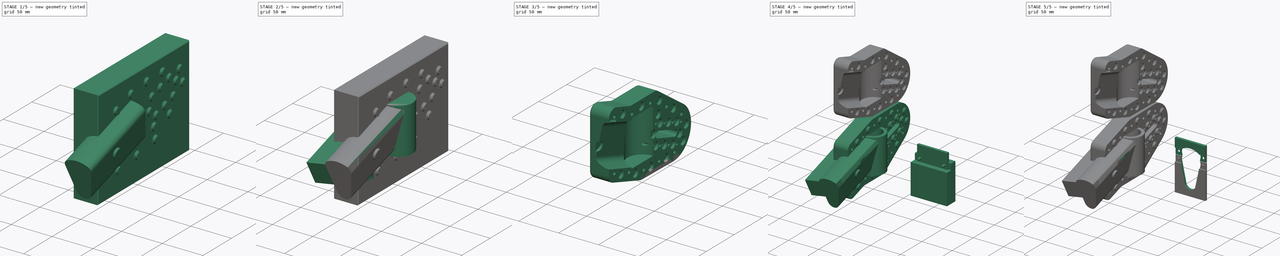
[diagram: build sequence overview — one tinted view per stage of 5, left to right]
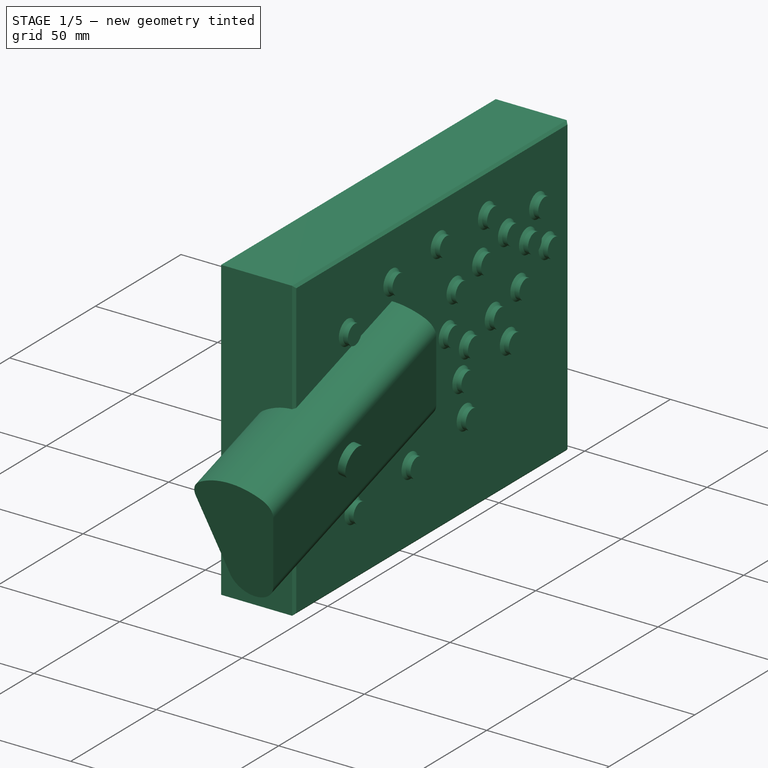
[diagram: stage 1 of 5 — iso view after this stage's code; geometry added in this stage tinted green]
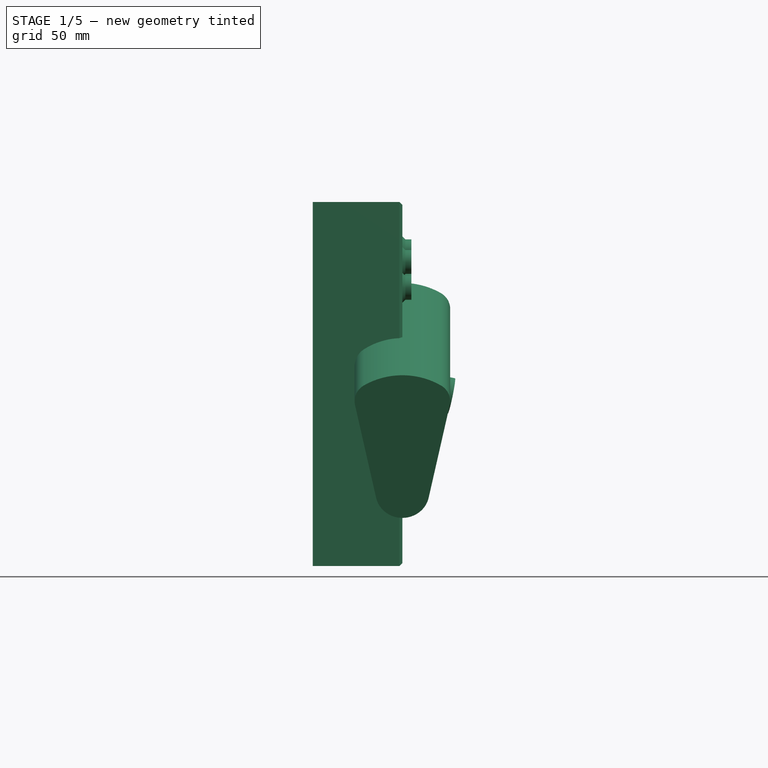
[diagram: stage 1 of 5 — front view after this stage's code; geometry added in this stage tinted green]
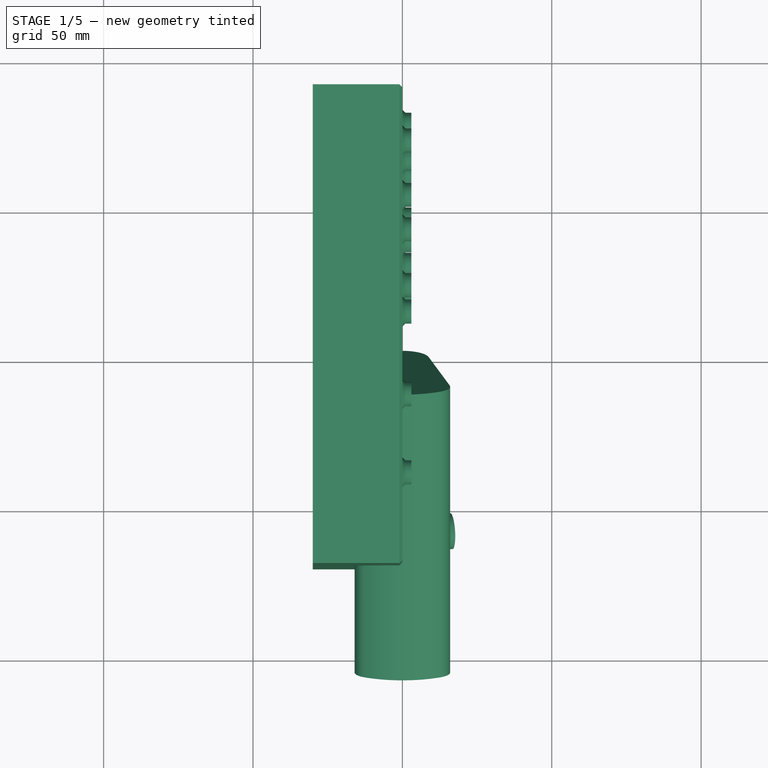
[diagram: stage 1 of 5 — top view after this stage's code; geometry added in this stage tinted green]
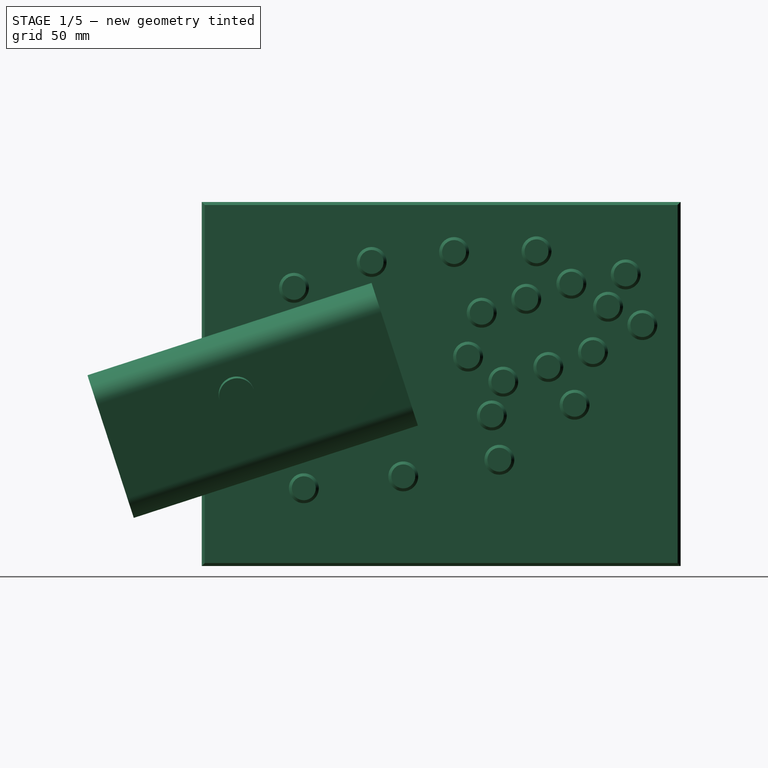
[diagram: stage 1 of 5 — right view after this stage's code; geometry added in this stage tinted green]
FCSTD DOCUMENT  (FreeCAD 0.20R28647 (Git))
Label: ello-front-wheel-mount
License: All rights reserved
LicenseURL: http://en.wikipedia.org/wiki/All_rights_reserved
objects: Sketcher::SketchObject×12, PartDesign::Pad×10, PartDesign::Body×6, Part::FeaturePython×6, Part::Cut×3, Part::Cylinder×2, PartDesign::FeatureBase×2, App::DocumentObjectGroup×2, PartDesign::Pocket×2, Part::Box×1, PartDesign::Mirrored×1, PartDesign::Fillet×1, Part::MultiFuse×1, PartDesign::PolarPattern×1, PartDesign::Chamfer×1
note: 63 computed .brp shape members not serialized (recipe doc carries the construction recipe); baked Part::Feature solids carry a one-line shape summary decoded from their .brp

FEATURE [Sketcher::SketchObject] Sketch  label="beam-profile"
  FullyConstrained = true
  MapMode = 5
  Placement = pos=(0,0,0) rot=(1,0,0;1.5708rad)
  Support = -> [XZ_Plane]
  sketch-geometry (12):
    g0: LineSegment StartX=-15.8529 StartY=39.6995 StartZ=0 EndX=-8.79633 EndY=7.09615 EndZ=0
    g1: LineSegment StartX=8.79633 StartY=7.09615 StartZ=0 EndX=15.8529 EndY=39.6995 EndZ=0
    g2: GeomPoint X=0 Y=50.2 Z=0
    g3: GeomPoint X=0 Y=0 Z=0
    g4: ArcOfCircle CenterX=-9.5 CenterY=41.0745 CenterZ=0 NormalX=0 NormalY=0 NormalZ=1 AngleXU=0 Radius=6.5 StartAngle=2.11007 EndAngle=3.35474
    g5: ArcOfCircle CenterX=9.5 CenterY=41.0745 CenterZ=0 NormalX=0 NormalY=0 NormalZ=1 AngleXU=0 Radius=6.5 StartAngle=6.07004 EndAngle=7.31471
    g6: ArcOfCircle CenterX=0 CenterY=25.2 CenterZ=0 NormalX=0 NormalY=0 NormalZ=1 AngleXU=0 Radius=25 StartAngle=1.03152 EndAngle=2.11007
    g7: LineSegment StartX=-16 StartY=50.2 StartZ=0 EndX=16 EndY=50.2 EndZ=0
    g8: LineSegment StartX=16 StartY=50.2 StartZ=0 EndX=16 EndY=0 EndZ=0
    g9: LineSegment StartX=16 StartY=0 StartZ=0 EndX=-16 EndY=0 EndZ=0
    g10: LineSegment StartX=-16 StartY=0 StartZ=0 EndX=-16 EndY=50.2 EndZ=0
    g11: ArcOfCircle CenterX=0 CenterY=9 CenterZ=0 NormalX=0 NormalY=0 NormalZ=1 AngleXU=0 Radius=9 StartAngle=3.35474 EndAngle=6.07004
  constraints (32):
    c: DistanceY(g3,g2) = 50.2
    c: Angle(g1,g0) = 0.426299
    c: DistanceX(g0,g1) = 17.5927
    c: Coincident(g3,g-1)
    c: PointOnObject(g6,g-2)
    c: Symmetric(g4,g5,g-2)
    c: Tangent(g4,g0) = -1.5708
    c: Tangent(g6,g4) = -1.5708
    c: PointOnObject(g2,g6)
    c: Coincident(g7,g8)
    c: Coincident(g8,g9)
    c: Coincident(g9,g10)
    c: Coincident(g10,g7)
    c: Horizontal(g7)
    c: Horizontal(g9)
    c: Vertical(g8)
    c: Vertical(g10)
    c: PointOnObject(g8,g-1)
    c: PointOnObject(g2,g7)
    c: Tangent(g5,g8)
    c: Tangent(g10,g4)
    c: DistanceX(g7,g7) = 32
    c: Tangent(g6,g5) = -1.5708
    c: Tangent(g5,g1) = -1.5708
    c: Radius(g5) = 6.5
    c: Radius(g6) = 25
    c: PointOnObject(g11,g-2)
    c: Tangent(g11,g1) = -1.5708
    c: Tangent(g11,g0) = -1.5708
    c: PointOnObject(g3,g11)
    c: PointOnObject(g2,g-2)
    c: Radius(g11) = 9
FEATURE [PartDesign::Pad] Pad
  Direction = (0,-1,-2e-16)
  Length = 100
  Length2 = 10
  Placement = pos=(0,0,0) rot=(1,0,0;1.5708rad)
  Profile = -> Sketch
  ReferenceAxis = -> Sketch [N_Axis]
  Type = 0
FEATURE [Sketcher::SketchObject] Sketch001
  FullyConstrained = true
  MapMode = 5
  Placement = pos=(0,0,0) rot=(0.57735,0.57735,0.57735;2.0944rad)
  Support = -> [YZ_Plane001]
  sketch-geometry (4):
    g0: LineSegment StartX=7.75 StartY=35.4 StartZ=0 EndX=15 EndY=35.4 EndZ=0
    g1: LineSegment StartX=15 StartY=35.4 StartZ=0 EndX=15 EndY=8.6 EndZ=0
    g2: LineSegment StartX=15 StartY=8.6 StartZ=0 EndX=7.75 EndY=8.6 EndZ=0
    g3: LineSegment StartX=7.75 StartY=8.6 StartZ=0 EndX=7.75 EndY=35.4 EndZ=0
  constraints (12):
    c: Coincident(g0,g1)
    c: Coincident(g1,g2)
    c: Coincident(g2,g3)
    c: Coincident(g3,g0)
    c: Horizontal(g0)
    c: Horizontal(g2)
    c: Vertical(g1)
    c: Vertical(g3)
    c: DistanceY(g1) = 8.6
    c: DistanceX(g2) = 7.75
    c: DistanceX(g1) = 15
    c: DistanceY(g0) = 35.4
FEATURE [PartDesign::FeatureBase] Clone
  BaseFeature = -> Body
  Placement = pos=(0,3,10) rot=(1,0,0;0.314159rad)
FEATURE [Sketcher::SketchObject] Sketch006
  FullyConstrained = true
  MapMode = 5
  Support = -> [XY_Plane001]
  sketch-geometry (1):
    g0: Circle CenterX=0 CenterY=0 CenterZ=0 NormalX=0 NormalY=0 NormalZ=1 AngleXU=0 Radius=14
  constraints (2):
    c: Coincident(g0,g-1)
    c: Diameter(g0) = 28
FEATURE [Sketcher::SketchObject] Sketch007
  FullyConstrained = false
  MapMode = 5
  Placement = pos=(0,0,0) rot=(0.57735,0.57735,0.57735;2.0944rad)
  Support = -> [YZ_Plane005]
  sketch-geometry (4):
    g0: LineSegment StartX=-69.3334 StartY=84.8413 StartZ=0 EndX=90.9307 EndY=84.8413 EndZ=0
    g1: LineSegment StartX=90.9307 StartY=84.8413 StartZ=0 EndX=90.9307 EndY=-37.0186 EndZ=0
    g2: LineSegment StartX=90.9307 StartY=-37.0186 StartZ=0 EndX=-69.3334 EndY=-37.0186 EndZ=0
    g3: LineSegment StartX=-69.3334 StartY=-37.0186 StartZ=0 EndX=-69.3334 EndY=84.8413 EndZ=0
  constraints (8):
    c: Coincident(g0,g1)
    c: Coincident(g1,g2)
    c: Coincident(g2,g3)
    c: Coincident(g3,g0)
    c: Horizontal(g0)
    c: Horizontal(g2)
    c: Vertical(g1)
    c: Vertical(g3)
FEATURE [PartDesign::Pad] Pad005
  Direction = (1,-2e-16,3e-16)
  Length = 30
  Length2 = 10
  Placement = pos=(0,0,0) rot=(0.57735,0.57735,0.57735;2.0944rad)
  Profile = -> Sketch007
  ReferenceAxis = -> Sketch007 [N_Axis]
  Reversed = true
  Type = 0
FEATURE [Sketcher::SketchObject] Sketch008
  FullyConstrained = false
  MapMode = 5
  Placement = pos=(0,0,0) rot=(0.57735,0.57735,0.57735;2.0944rad)
  Support = -> [YZ_Plane005]
  sketch-geometry (19):
    g0: Circle CenterX=-38.4801 CenterY=56.102 CenterZ=0 NormalX=0 NormalY=0 NormalZ=1 AngleXU=0 Radius=4
    g1: Circle CenterX=-12.4894 CenterY=64.7656 CenterZ=0 NormalX=0 NormalY=0 NormalZ=1 AngleXU=0 Radius=4
    g2: Circle CenterX=15.1138 CenterY=68.0816 CenterZ=0 NormalX=0 NormalY=0 NormalZ=1 AngleXU=0 Radius=4
    g3: Circle CenterX=42.7135 CenterY=68.3291 CenterZ=0 NormalX=0 NormalY=0 NormalZ=1 AngleXU=0 Radius=4
    g4: Circle CenterX=55.4613 CenterY=16.9665 CenterZ=0 NormalX=0 NormalY=0 NormalZ=1 AngleXU=0 Radius=4
    g5: Circle CenterX=30.2726 CenterY=-1.44784 CenterZ=0 NormalX=0 NormalY=0 NormalZ=1 AngleXU=0 Radius=4
    g6: Circle CenterX=-1.89819 CenterY=-7.01318 CenterZ=0 NormalX=0 NormalY=0 NormalZ=1 AngleXU=0 Radius=4
    g7: Circle CenterX=-35.1849 CenterY=-10.9855 CenterZ=0 NormalX=0 NormalY=0 NormalZ=1 AngleXU=0 Radius=4
    g8: Circle CenterX=61.5886 CenterY=34.5875 CenterZ=0 NormalX=0 NormalY=0 NormalZ=1 AngleXU=0 Radius=4
    g9: Circle CenterX=19.7939 CenterY=33.0866 CenterZ=0 NormalX=0 NormalY=0 NormalZ=1 AngleXU=0 Radius=4
    g10: Circle CenterX=24.3568 CenterY=47.7709 CenterZ=0 NormalX=0 NormalY=0 NormalZ=1 AngleXU=0 Radius=4
    g11: Circle CenterX=54.3709 CenterY=57.4852 CenterZ=0 NormalX=0 NormalY=0 NormalZ=1 AngleXU=0 Radius=4
    g12: Circle CenterX=27.7379 CenterY=13.3773 CenterZ=0 NormalX=0 NormalY=0 NormalZ=1 AngleXU=0 Radius=4
    g13: Circle CenterX=72.5637 CenterY=60.589 CenterZ=0 NormalX=0 NormalY=0 NormalZ=1 AngleXU=0 Radius=4
    g14: Circle CenterX=78.1331 CenterY=43.6331 CenterZ=0 NormalX=0 NormalY=0 NormalZ=1 AngleXU=0 Radius=4
    g15: Circle CenterX=39.2717 CenterY=52.4244 CenterZ=0 NormalX=0 NormalY=0 NormalZ=1 AngleXU=0 Radius=4
    g16: Circle CenterX=46.6553 CenterY=29.6097 CenterZ=0 NormalX=0 NormalY=0 NormalZ=1 AngleXU=0 Radius=4
    g17: Circle CenterX=66.6493 CenterY=49.7696 CenterZ=0 NormalX=0 NormalY=0 NormalZ=1 AngleXU=0 Radius=4
    g18: Circle CenterX=31.5745 CenterY=24.7074 CenterZ=0 NormalX=0 NormalY=0 NormalZ=1 AngleXU=0 Radius=4
  constraints (19):
    c: Equal(g7,g6)
    c: Equal(g6,g5)
    c: Equal(g5,g4)
    c: Equal(g3,g2)
    c: Equal(g2,g1)
    c: Equal(g1,g0)
    c: Diameter(g7) = 8
    c: Equal(g8,g11)
    c: Equal(g9,g10)
    c: Equal(g8,g14)
    c: Equal(g14,g12)
    c: Equal(g12,g13)
    c: Equal(g16,g15)
    c: Equal(g5,g12)
    c: Equal(g12,g9)
    c: Equal(g7,g0)
    c: Equal(g17,g7)
    c: Equal(g15,g7)
    c: Equal(g18,g7)
FEATURE [PartDesign::Pad] Pad006
  BaseFeature = -> Pad005
  Direction = (1,-2e-16,3e-16)
  Length = 3
  Length2 = 10
  Placement = pos=(0,0,0) rot=(0.57735,0.57735,0.57735;2.0944rad)
  Profile = -> Sketch008
  ReferenceAxis = -> Sketch008 [N_Axis]
  Type = 0
FEATURE [Sketcher::SketchObject] Sketch010
  FullyConstrained = true
  MapMode = 5
  Placement = pos=(6.93556,3.46387,8.57236) rot=(0.655053,0.506624,0.560569;2.42129rad)
  Support = -> [Clone]
  sketch-geometry (1):
    g0: Circle CenterX=-54.5 CenterY=31 CenterZ=0 NormalX=0 NormalY=0 NormalZ=1 AngleXU=0 Radius=6
  constraints (3):
    c: DistanceX(g0) = -54.5
    c: DistanceY(g0) = 31
    c: Diameter(g0) = 12
FEATURE [PartDesign::Pad] Pad008  label="Rivet-left"
  BaseFeature = -> Clone
  Direction = (0.97737,0.0653692,-0.201186)
  Length = 3
  Length2 = 10
  Placement = pos=(0,3,10) rot=(1,0,0;0.314159rad)
  Profile = -> Sketch010
  ReferenceAxis = -> Sketch010 [N_Axis]
  Type = 0
FEATURE [PartDesign::Chamfer] Chamfer
  Angle = 45
  Base = -> Pad006 [Face4]
  BaseFeature = -> Pad006
  ChamferType = 0
  FlipDirection = false
  Placement = pos=(0,0,0) rot=(0.57735,0.57735,0.57735;2.0944rad)
  Size = 1
  Size2 = 1
  SupportTransform = false
  UseAllEdges = false
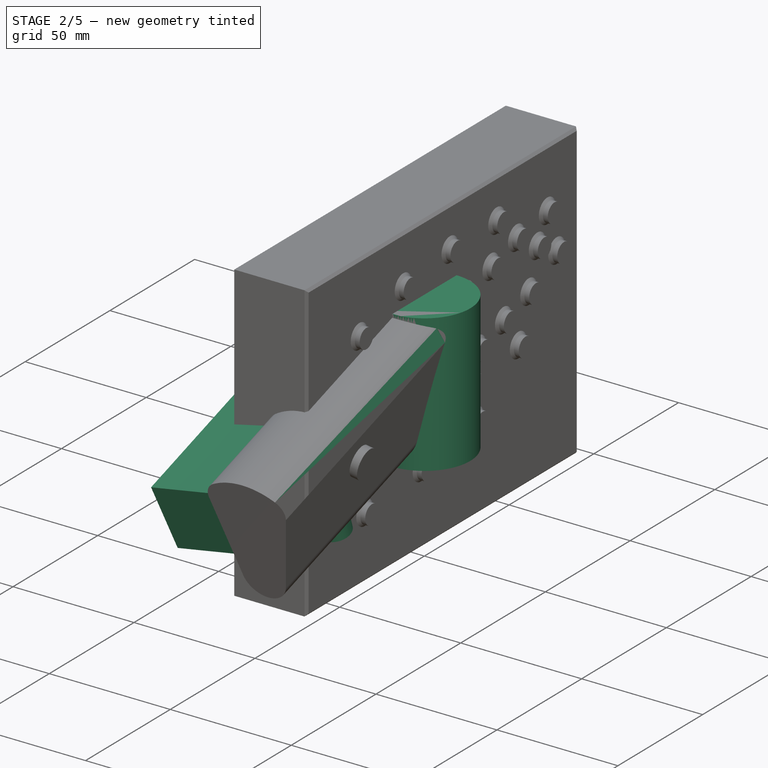
[diagram: stage 2 of 5 — iso view after this stage's code; geometry added in this stage tinted green]
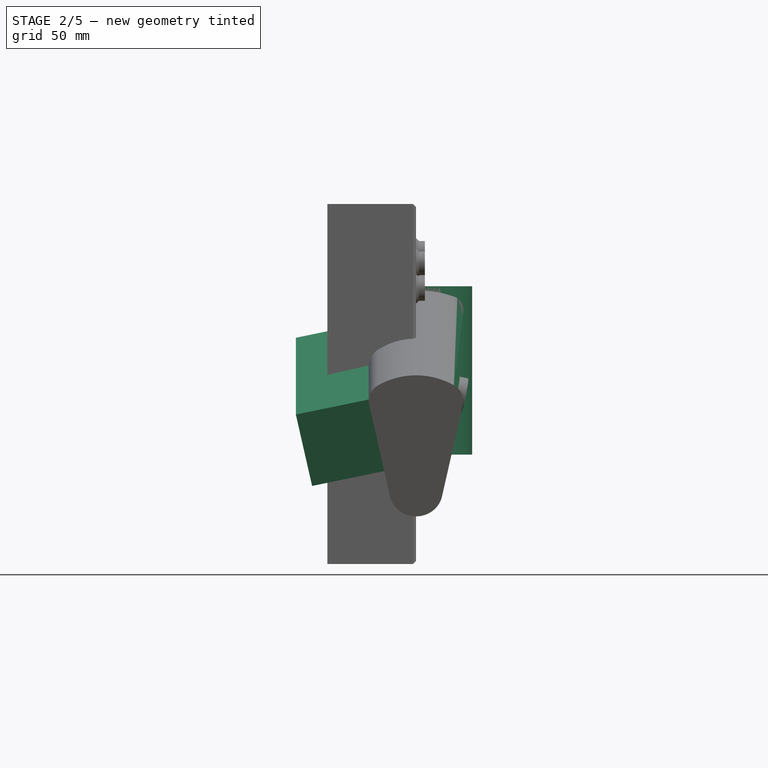
[diagram: stage 2 of 5 — front view after this stage's code; geometry added in this stage tinted green]
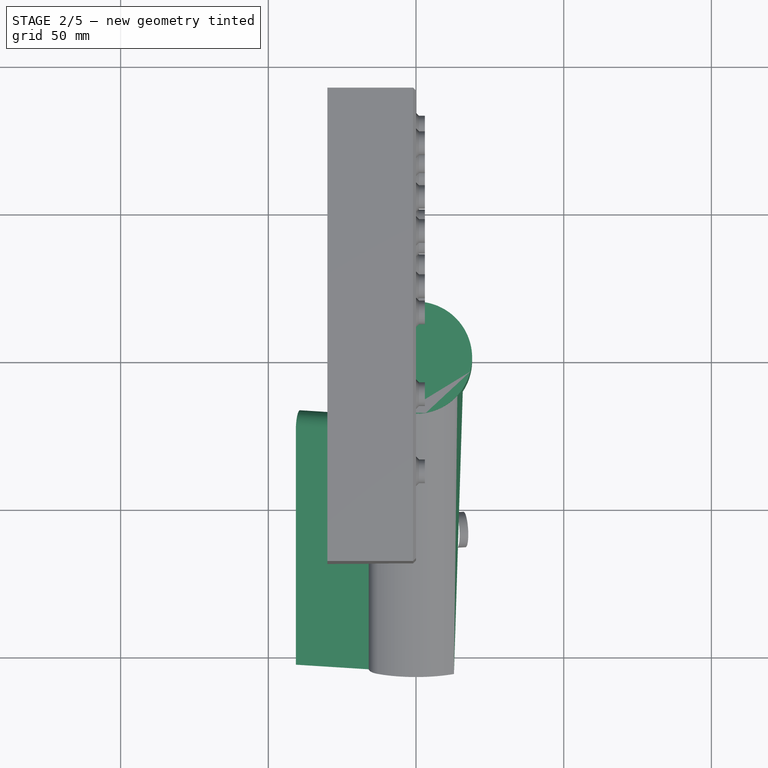
[diagram: stage 2 of 5 — top view after this stage's code; geometry added in this stage tinted green]
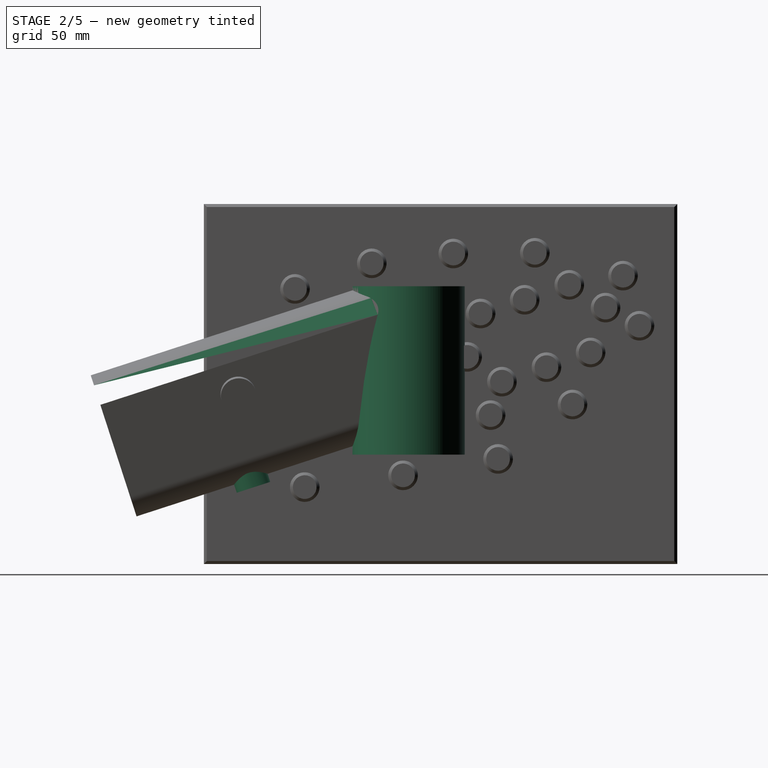
[diagram: stage 2 of 5 — right view after this stage's code; geometry added in this stage tinted green]
FEATURE [PartDesign::Body] Body  label="Beam"
  Group = -> [Sketch,Pad]
  Origin = -> Origin
  Placement = pos=(100,0,0) rot=(1,0,0;0rad)
  Tip = -> Pad
FEATURE [Part::Cylinder] Cylinder
  Angle = 360
  AttacherType = Attacher::AttachEngine3D
  FirstAngle = 0
  Height = 57
  Radius = 19
  SecondAngle = 0
FEATURE [PartDesign::Body] Body004  label="mount-body"
  Group = -> [Sketch004,Pad004,Sketch005,Pocket,Mirrored,Fillet]
  Origin = -> Origin004
  Tip = -> Fillet
FEATURE [Part::Cylinder] Cylinder002
  Angle = 360
  AttacherType = Attacher::AttachEngine3D
  FirstAngle = 0
  Height = 10
  Placement = pos=(0,0,56) rot=(0,0,1;0rad)
  Radius = 20
  SecondAngle = 0
FEATURE [Sketcher::SketchObject] Sketch011
  AttachmentOffset = pos=(0,0,6) rot=(1,0,0;0.314159rad)
  FullyConstrained = false
  MapMode = 5
  Placement = pos=(0,0,6) rot=(1,0,0;0.314159rad)
  Support = -> [XY_Plane002]
  sketch-geometry (2):
    g0: Circle CenterX=0 CenterY=-55.2233 CenterZ=0 NormalX=0 NormalY=0 NormalZ=1 AngleXU=0 Radius=6
    g1: LineSegment StartX=0 StartY=-55.2233 StartZ=0 EndX=0 EndY=-18.2233 EndZ=0
  constraints (5):
    c: PointOnObject(g0,g-2)
    c: Diameter(g0) = 12
    c: Coincident(g1,g0)
    c: PointOnObject(g1,g-2)
    c: DistanceY(g1,g1) = 37
FEATURE [PartDesign::Pad] Pad009  label="Rivet-bottom"
  BaseFeature = -> Pad008
  Direction = (0,-0.309017,0.951057)
  Length = 10
  Length2 = 10
  Placement = pos=(0,3,10) rot=(1,0,0;0.314159rad)
  Profile = -> Sketch011
  ReferenceAxis = -> Sketch011 [N_Axis]
  Type = 0
FEATURE [Sketcher::SketchObject] Sketch012
  FullyConstrained = true
  MapMode = 5
  Placement = pos=(-6.93556,3.46387,8.57236) rot=(0.655053,-0.506624,-0.560569;2.42129rad)
  Support = -> [Pad009]
  sketch-geometry (8):
    g0: LineSegment StartX=16.5445 StartY=44 StartZ=0 EndX=99.9 EndY=44 EndZ=0
    g1: LineSegment StartX=99.9 StartY=44 StartZ=0 EndX=99.9 EndY=18 EndZ=0
    g2: LineSegment StartX=99.9 StartY=18 StartZ=0 EndX=23.3137 EndY=18 EndZ=0
    g3: LineSegment StartX=18.7089 StartY=21.0518 StartZ=0 EndX=11.9396 EndY=37.0518 EndZ=0
    g4: ArcOfCircle CenterX=16.5445 CenterY=39 CenterZ=0 NormalX=0 NormalY=0 NormalZ=1 AngleXU=0 Radius=5 StartAngle=1.5708 EndAngle=3.54183
    g5: GeomPoint X=9 Y=44 Z=0
    g6: ArcOfCircle CenterX=23.3137 CenterY=23 CenterZ=0 NormalX=0 NormalY=0 NormalZ=1 AngleXU=0 Radius=5 StartAngle=3.54183 EndAngle=4.71239
    g7: GeomPoint X=20 Y=18 Z=0
  constraints (20):
    c: Coincident(g0,g1)
    c: Coincident(g1,g2)
    c: Horizontal(g0)
    c: Horizontal(g2)
    c: Vertical(g1)
    c: DistanceY(g1,g1) = 26
    c: PointOnObject(g5,g0)
    c: PointOnObject(g5,g3)
    c: Tangent(g0,g4) = 1.5708
    c: Tangent(g3,g4) = 1.5708
    c: PointOnObject(g7,g2)
    c: PointOnObject(g7,g3)
    c: Tangent(g2,g6) = 1.5708
    c: Tangent(g3,g6) = 1.5708
    c: Equal(g6,g4)
    c: Radius(g6) = 5
    c: DistanceY(g2) = 18
    c: DistanceX(g1) = 99.9
    c: DistanceX(g7) = 20
    c: DistanceX(g5) = 9
FEATURE [PartDesign::Pad] Pad010  label="Seat-mount"
  BaseFeature = -> Pad009
  Direction = (-0.97737,0.0653692,-0.201186)
  Length = 25
  Length2 = 1
  Placement = pos=(0,3,10) rot=(1,0,0;0.314159rad)
  Profile = -> Sketch012
  ReferenceAxis = -> Sketch012 [N_Axis]
  Type = 4
FEATURE [PartDesign::Body] Body002  label="Beam-Clone"
  BaseFeature = -> Body
  Group = -> [Clone,Sketch010,Pad008,Sketch011,Pad009,Sketch012,Pad010]
  Origin = -> Origin002
  Tip = -> Pad010
FEATURE [Part::Cut] Cut
  Base = -> Body002
  Tool = -> Cylinder002
FEATURE [Part::MultiFuse] Fusion  label="ello-beam-head-base"
  Shapes = -> [Cylinder,Cut]
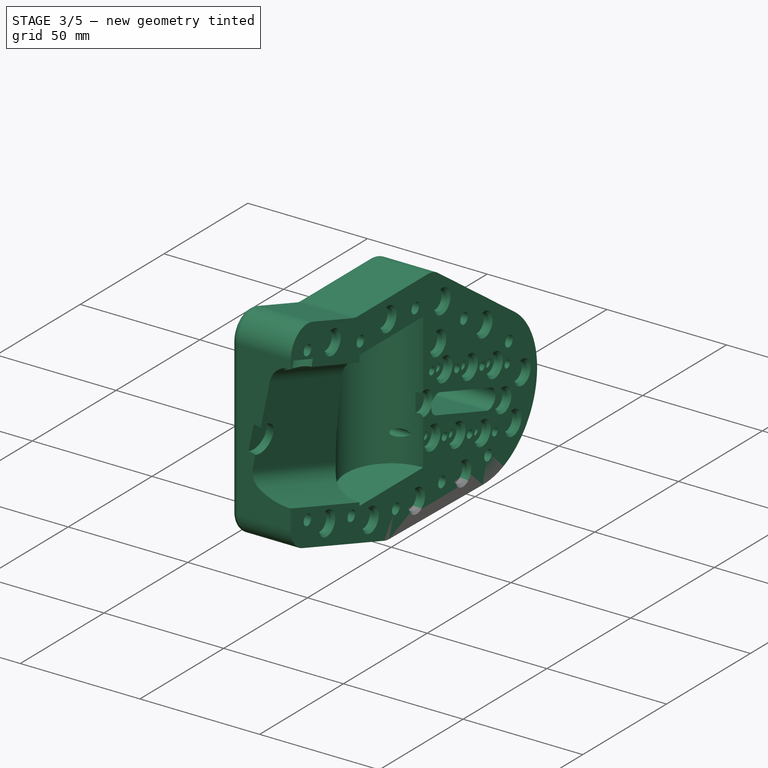
[diagram: stage 3 of 5 — iso view after this stage's code; geometry added in this stage tinted green]
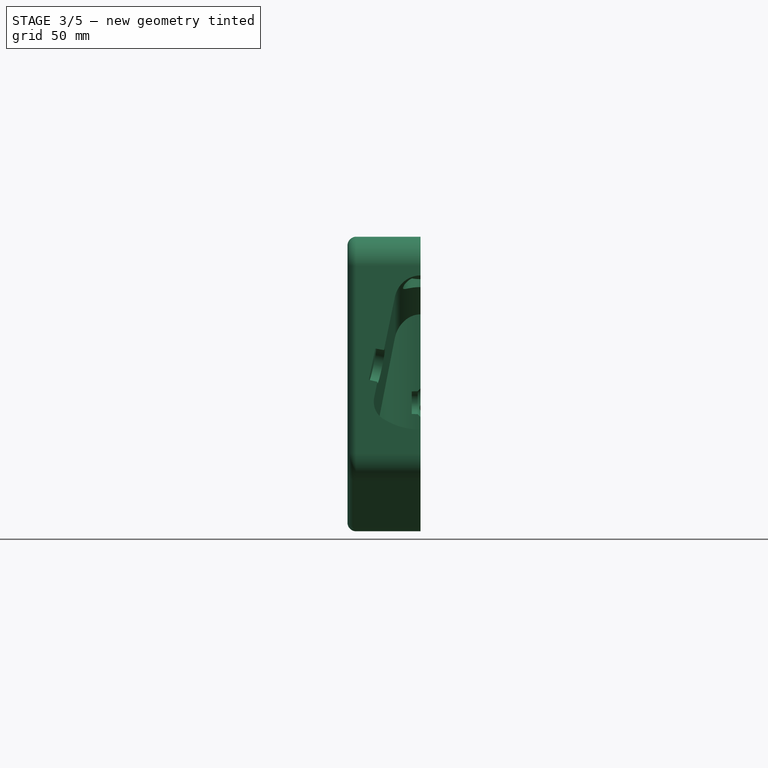
[diagram: stage 3 of 5 — front view after this stage's code; geometry added in this stage tinted green]
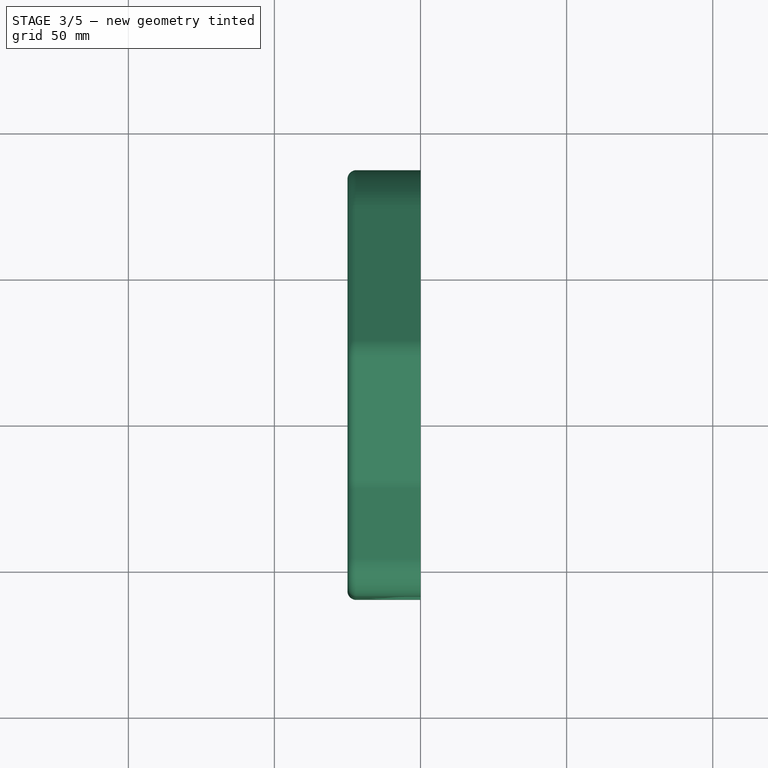
[diagram: stage 3 of 5 — top view after this stage's code; geometry added in this stage tinted green]
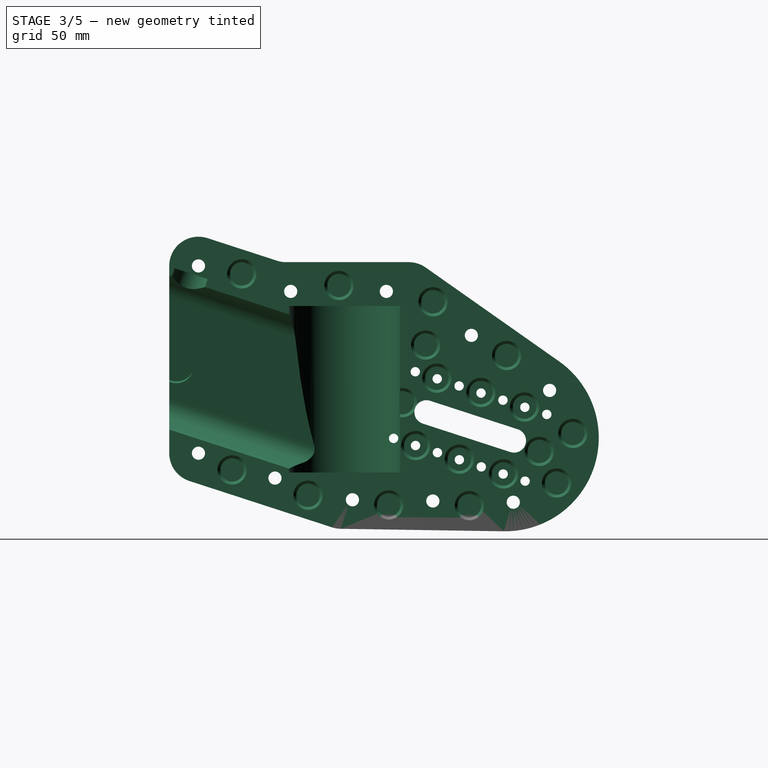
[diagram: stage 3 of 5 — right view after this stage's code; geometry added in this stage tinted green]
FEATURE [App::DocumentObjectGroup] GrExplode_Slice  label="beam-profile-template-Exploded-Slice"
  Group = -> [Slice_child0,Slice_child1]
FEATURE [Sketcher::SketchObject] Sketch004
  FullyConstrained = true
  MapMode = 5
  Placement = pos=(0,0,0) rot=(0.57735,0.57735,0.57735;2.0944rad)
  Support = -> [YZ_Plane004]
  sketch-geometry (70):
    g0: LineSegment StartX=-60 StartY=-13.7183 StartZ=0 EndX=-60 EndY=50.3876 EndZ=0
    g1: ArcOfCircle CenterX=-50 CenterY=50.3876 CenterZ=0 NormalX=0 NormalY=0 NormalZ=1 AngleXU=0 Radius=10 StartAngle=1.88496 EndAngle=3.14159
    g2: GeomPoint X=-60 Y=57.6531 Z=0
    g3: ArcOfCircle CenterX=22 CenterY=-5 CenterZ=0 NormalX=0 NormalY=0 NormalZ=1 AngleXU=0 Radius=10 StartAngle=4.71239 EndAngle=5.32545
    g4: ArcOfCircle CenterX=-50 CenterY=-13.7183 CenterZ=0 NormalX=0 NormalY=0 NormalZ=1 AngleXU=0 Radius=10 StartAngle=3.14159 EndAngle=5.02655
    g5: GeomPoint X=-60 Y=-27.4822 Z=0
    g6: ArcOfCircle CenterX=28 CenterY=36.3404 CenterZ=0 NormalX=0 NormalY=0 NormalZ=1 AngleXU=0 Radius=4.1 StartAngle=1.88496 EndAngle=5.02655
    g7: ArcOfCircle CenterX=58 CenterY=46.088 CenterZ=0 NormalX=0 NormalY=0 NormalZ=1 AngleXU=0 Radius=4.1 StartAngle=5.02655 EndAngle=8.16814
    g8: LineSegment StartX=29.267 StartY=32.4411 StartZ=0 EndX=59.267 EndY=42.1887 EndZ=0
    g9: LineSegment StartX=56.733 StartY=49.9874 StartZ=0 EndX=26.733 EndY=40.2398 EndZ=0
    g10: ArcOfCircle CenterX=55 CenterY=45.1133 CenterZ=0 NormalX=0 NormalY=0 NormalZ=1 AngleXU=0 Radius=32 StartAngle=5.32545 EndAngle=7.86924
    g11: LineSegment StartX=-1.306 StartY=76.2577 StartZ=0 EndX=54.5117 EndY=77.1095 EndZ=0
    g12: LineSegment StartX=73.4119 StartY=18.9407 StartZ=0 EndX=27.7537 EndY=-13.1789 EndZ=0
    g13: LineSegment StartX=-60 StartY=7.74751 StartZ=0 EndX=85.4338 EndY=55.0018 EndZ=0
    g14: LineSegment StartX=-53.0902 StartY=59.8982 StartZ=0 EndX=-4.24357 EndY=75.7694 EndZ=0
    g15: LineSegment StartX=-23.0902 StartY=-15.4894 StartZ=0 EndX=-46.9098 EndY=-23.2289 EndZ=0
    g16: LineSegment StartX=22 StartY=-15 StartZ=0 EndX=-20 EndY=-15 EndZ=0
    g17: ArcOfCircle CenterX=-20 CenterY=-25 CenterZ=0 NormalX=0 NormalY=0 NormalZ=1 AngleXU=0 Radius=10 StartAngle=1.5708 EndAngle=1.88496
    g18: ArcOfCircle CenterX=-1.1534 CenterY=66.2588 CenterZ=0 NormalX=0 NormalY=0 NormalZ=1 AngleXU=0 Radius=10 StartAngle=1.58606 EndAngle=1.88496
    g19: GeomPoint X=-22 Y=70 Z=0
    g20: Circle CenterX=-50 CenterY=50.3876 CenterZ=0 NormalX=0 NormalY=0 NormalZ=1 AngleXU=0 Radius=2.25
    g21: Circle CenterX=-50 CenterY=-13.7183 CenterZ=0 NormalX=0 NormalY=0 NormalZ=1 AngleXU=0 Radius=2.25
    g22: Circle CenterX=-23.8177 CenterY=58.8948 CenterZ=0 NormalX=0 NormalY=0 NormalZ=1 AngleXU=0 Radius=2.25
    g23: Circle CenterX=-18.435 CenterY=-5 CenterZ=0 NormalX=0 NormalY=0 NormalZ=1 AngleXU=0 Radius=2.25
    g24: Circle CenterX=2.69233 CenterY=66.3175 CenterZ=0 NormalX=0 NormalY=0 NormalZ=1 AngleXU=0 Radius=2.25
    g25: Circle CenterX=14.3118 CenterY=-5 CenterZ=0 NormalX=0 NormalY=0 NormalZ=1 AngleXU=0 Radius=2.25
    g26: Circle CenterX=43.3949 CenterY=10.0509 CenterZ=0 NormalX=0 NormalY=0 NormalZ=1 AngleXU=0 Radius=2.25
    g27: Circle CenterX=30.2188 CenterY=66.7376 CenterZ=0 NormalX=0 NormalY=0 NormalZ=1 AngleXU=0 Radius=2.25
    g28: Circle CenterX=57.7452 CenterY=67.1577 CenterZ=0 NormalX=0 NormalY=0 NormalZ=1 AngleXU=0 Radius=2.25
    g29: Circle CenterX=70.1783 CenterY=28.8925 CenterZ=0 NormalX=0 NormalY=0 NormalZ=1 AngleXU=0 Radius=2.25
    g30: LineSegment StartX=22 StartY=-5 StartZ=0 EndX=-23.1677 EndY=-5 EndZ=0
    g31: LineSegment StartX=-23.1677 StartY=-5 StartZ=0 EndX=-50 EndY=-13.7183 EndZ=0
    g32: LineSegment StartX=2.69233 StartY=66.3175 StartZ=0 EndX=-23.8177 EndY=58.8948 EndZ=0
    g33: LineSegment StartX=-23.8177 StartY=58.8948 StartZ=0 EndX=-50 EndY=50.3876 EndZ=0
    g34: LineSegment StartX=70.1783 StartY=28.8925 StartZ=0 EndX=43.3949 EndY=10.0509 EndZ=0
    g35: LineSegment StartX=43.3949 StartY=10.0509 StartZ=0 EndX=22 EndY=-5 EndZ=0
    g36: LineSegment StartX=43.3949 StartY=10.0509 StartZ=0 EndX=14.3118 EndY=-5 EndZ=0
    g37: Circle CenterX=16.7918 CenterY=45.3162 CenterZ=0 NormalX=0 NormalY=0 NormalZ=1 AngleXU=0 Radius=1.6
    g38: Circle CenterX=24.2082 CenterY=22.4909 CenterZ=0 NormalX=0 NormalY=0 NormalZ=1 AngleXU=0 Radius=1.6
    g39: LineSegment StartX=16.7918 StartY=45.3162 StartZ=0 EndX=24.2918 EndY=47.7531 EndZ=0
    g40: LineSegment StartX=24.2918 StartY=47.7531 StartZ=0 EndX=31.7918 EndY=50.19 EndZ=0
    g41: LineSegment StartX=31.7918 StartY=50.19 StartZ=0 EndX=39.2918 EndY=52.6269 EndZ=0
    g42: LineSegment StartX=39.2918 StartY=52.6269 StartZ=0 EndX=46.7918 EndY=55.0638 EndZ=0
    g43: LineSegment StartX=46.7918 StartY=55.0638 StartZ=0 EndX=54.2918 EndY=57.5007 EndZ=0
    g44: LineSegment StartX=24.2082 StartY=22.4909 StartZ=0 EndX=31.7082 EndY=24.9278 EndZ=0
    g45: LineSegment StartX=31.7082 StartY=24.9278 StartZ=0 EndX=39.2082 EndY=27.3647 EndZ=0
    g46: LineSegment StartX=39.2082 StartY=27.3647 StartZ=0 EndX=46.7082 EndY=29.8016 EndZ=0
    g47: LineSegment StartX=46.7082 StartY=29.8016 StartZ=0 EndX=54.2082 EndY=32.2385 EndZ=0
    g48: LineSegment StartX=54.2082 StartY=32.2385 StartZ=0 EndX=61.7082 EndY=34.6754 EndZ=0
    g49: LineSegment StartX=24.2918 StartY=47.7531 StartZ=0 EndX=31.7082 EndY=24.9278 EndZ=0
    g50: LineSegment StartX=54.2918 StartY=57.5007 StartZ=0 EndX=61.7918 EndY=59.9376 EndZ=0
    g51: LineSegment StartX=61.7082 StartY=34.6754 StartZ=0 EndX=69.2082 EndY=37.1123 EndZ=0
    g52: LineSegment StartX=61.7082 StartY=34.6754 StartZ=0 EndX=54.2918 EndY=57.5007 EndZ=0
    g53: Circle CenterX=24.2918 CenterY=47.7531 CenterZ=0 NormalX=0 NormalY=0 NormalZ=1 AngleXU=0 Radius=1.6
    g54: Circle CenterX=31.7918 CenterY=50.19 CenterZ=0 NormalX=0 NormalY=0 NormalZ=1 AngleXU=0 Radius=1.6
    g55: Circle CenterX=39.2918 CenterY=52.6269 CenterZ=0 NormalX=0 NormalY=0 NormalZ=1 AngleXU=0 Radius=1.6
    g56: Circle CenterX=46.7918 CenterY=55.0638 CenterZ=0 NormalX=0 NormalY=0 NormalZ=1 AngleXU=0 Radius=1.6
    g57: Circle CenterX=54.2918 CenterY=57.5007 CenterZ=0 NormalX=0 NormalY=0 NormalZ=1 AngleXU=0 Radius=1.6
    g58: Circle CenterX=61.7918 CenterY=59.9376 CenterZ=0 NormalX=0 NormalY=0 NormalZ=1 AngleXU=0 Radius=1.6
    g59: Circle CenterX=69.2082 CenterY=37.1123 CenterZ=0 NormalX=0 NormalY=0 NormalZ=1 AngleXU=0 Radius=1.6
    g60: Circle CenterX=61.7082 CenterY=34.6754 CenterZ=0 NormalX=0 NormalY=0 NormalZ=1 AngleXU=0 Radius=1.6
    g61: Circle CenterX=54.2082 CenterY=32.2385 CenterZ=0 NormalX=0 NormalY=0 NormalZ=1 AngleXU=0 Radius=1.6
    g62: Circle CenterX=46.7082 CenterY=29.8016 CenterZ=0 NormalX=0 NormalY=0 NormalZ=1 AngleXU=0 Radius=1.6
    g63: Circle CenterX=39.2082 CenterY=27.3647 CenterZ=0 NormalX=0 NormalY=0 NormalZ=1 AngleXU=0 Radius=1.6
    g64: Circle CenterX=31.7082 CenterY=24.9278 CenterZ=0 NormalX=0 NormalY=0 NormalZ=1 AngleXU=0 Radius=1.6
    g65: LineSegment StartX=2.69233 StartY=66.3175 StartZ=0 EndX=30.2188 EndY=66.7376 EndZ=0
    g66: LineSegment StartX=30.2188 StartY=66.7376 StartZ=0 EndX=57.7452 EndY=67.1577 EndZ=0
    g67: LineSegment StartX=54.5117 StartY=77.1095 StartZ=0 EndX=73.4119 EndY=18.9407 EndZ=0
    g68: LineSegment StartX=14.3118 StartY=-5 StartZ=0 EndX=-18.435 EndY=-5 EndZ=0
    g69: LineSegment StartX=-18.435 StartY=-5 StartZ=0 EndX=-50 EndY=-13.7183 EndZ=0
  constraints (170):
    c: Vertical(g0)
    c: PointOnObject(g2,g0)
    c: Tangent(g14,g1) = 1.5708
    c: Tangent(g0,g1) = 1.5708
    c: Tangent(g16,g3) = 1.5708
    c: PointOnObject(g5,g0)
    c: Tangent(g15,g4) = 1.5708
    c: Tangent(g0,g4) = 1.5708
    c: Equal(g4,g3)
    c: Radius(g1) = 10
    c: Tangent(g6,g8) = -1.5708
    c: Tangent(g8,g7) = -1.5708
    c: Tangent(g7,g9) = -1.5708
    c: Tangent(g9,g6) = -1.5708
    c: Equal(g6,g7)
    c: Diameter(g7) = 8.2
    c: DistanceX(g6,g7) = 30
    c: DistanceX(g6) = 28
    c: Radius(g10) = 32
    c: PointOnObject(g13,g0)
    c: PointOnObject(g13,g10)
    c: PointOnObject(g7,g13)
    c: Tangent(g12,g10) = 1.5708
    c: Tangent(g11,g10) = 1.5708
    c: Tangent(g12,g3) = 1.5708
    c: PointOnObject(g2,g14)
    c: PointOnObject(g5,g15)
    c: Horizontal(g16)
    c: Tangent(g17,g16) = -1.5708
    c: DistanceY(g16) = -15
    c: Tangent(g17,g15) = -1.5708
    c: Parallel(g14,g15)
    c: DistanceX(g17) = -20
    c: Angle(g14) = 0.314159
    c: PointOnObject(g6,g13)
    c: Angle(g13) = 0.314159
    c: Symmetric(g3,g11,g13)
    c: DistanceX(g3) = 22
    c: Equal(g4,g1)
    c: Tangent(g18,g11) = 1.5708
    c: Equal(g1,g18)
    c: Tangent(g14,g18) = 1.5708
    c: PointOnObject(g19,g14)
    c: DistanceX(g19) = -22
    c: DistanceY(g19) = 70
    c: DistanceX(g0) = -60
    c: Equal(g17,g1)
    c: Coincident(g20,g1)
    c: Coincident(g21,g4)
    c: Horizontal(g30)
    c: Coincident(g30,g31)
    c: Coincident(g31,g4)
    c: Symmetric(g29,g28,g13)
    c: Equal(g21,g23)
    c: Equal(g23,g25)
    c: Equal(g25,g26)
    c: Equal(g29,g28)
    c: Equal(g28,g27)
    c: Equal(g27,g24)
    c: Equal(g24,g22)
    c: Equal(g22,g20)
    c: Diameter(g29) = 4.5
    c: Coincident(g32,g22)
    c: Coincident(g32,g33)
    c: Coincident(g33,g1)
    c: Coincident(g34,g29)
    c: Coincident(g35,g3)
    c: Coincident(g30,g3)
    c: Parallel(g31,g15)
    c: Equal(g26,g29)
    c: Coincident(g34,g26)
    c: Coincident(g35,g26)
    c: Coincident(g36,g26)
    c: Coincident(g36,g25)
    c: Equal(g36,g34)
    c: Parallel(g35,g34)
    c: Symmetric(g38,g37,g13)
    c: Distance(g38,g37) = 24
    c: Coincident(g39,g37)
    c: Coincident(g39,g40)
    c: Coincident(g40,g41)
    c: Coincident(g41,g42)
    c: Coincident(g42,g43)
    c: Parallel(g39,g40)
    c: Parallel(g40,g41)
    c: Parallel(g41,g42)
    c: Parallel(g42,g43)
    c: Parallel(g43,g13)
    c: Coincident(g44,g38)
    c: Coincident(g44,g45)
    c: Coincident(g45,g46)
    c: Coincident(g46,g47)
    c: Coincident(g47,g48)
    c: Parallel(g13,g48)
    c: Parallel(g48,g47)
    c: Parallel(g47,g46)
    c: Parallel(g46,g45)
    c: Parallel(g45,g44)
    c: Equal(g44,g45)
    c: Equal(g45,g46)
    c: Equal(g46,g47)
    c: Equal(g47,g48)
    c: Equal(g48,g39)
    c: Equal(g39,g40)
    c: Equal(g40,g41)
    c: Equal(g41,g42)
    c: Equal(g42,g43)
    c: Coincident(g39,g49)
    c: Coincident(g49,g44)
    c: PointOnObject(g6,g49)
    c: Coincident(g50,g43)
    c: Coincident(g51,g48)
    c: Parallel(g51,g13)
    c: Parallel(g13,g50)
    c: Equal(g50,g43)
    c: Equal(g51,g48)
    c: Coincident(g52,g48)
    c: Coincident(g52,g43)
    c: PointOnObject(g7,g52)
    c: Equal(g38,g37)
    c: Diameter(g38) = 3.2
    c: Coincident(g53,g39)
    c: Coincident(g54,g40)
    c: Coincident(g55,g41)
    c: Coincident(g56,g42)
    c: Coincident(g57,g43)
    c: Coincident(g58,g50)
    c: Coincident(g59,g51)
    c: Coincident(g60,g48)
    c: Coincident(g61,g47)
    c: Coincident(g62,g46)
    c: Coincident(g63,g45)
    c: Coincident(g64,g44)
    c: Equal(g59,g60)
    c: Equal(g60,g61)
    c: Equal(g61,g62)
    c: Equal(g62,g63)
    c: Equal(g63,g64)
    c: Equal(g64,g38)
    c: Equal(g37,g53)
    c: Equal(g53,g54)
    c: Equal(g54,g55)
    c: Equal(g55,g56)
    c: Equal(g56,g57)
    c: Equal(g57,g58)
    c: Coincident(g65,g66)
    c: Coincident(g66,g28)
    c: Coincident(g27,g65)
    c: Equal(g66,g65)
    c: Coincident(g67,g10)
    c: Coincident(g67,g10)
    c: PointOnObject(g29,g67)
    c: PointOnObject(g25,g30)
    c: Coincident(g68,g25)
    c: Coincident(g68,g23)
    c: Equal(g68,g36)
    c: Coincident(g69,g23)
    c: Coincident(g69,g4)
    c: Equal(g69,g68)
    c: PointOnObject(g23,g30)
    c: Parallel(g33,g13)
    c: Parallel(g66,g11)
    c: Coincident(g65,g24)
    c: Coincident(g65,g32)
    c: Equal(g32,g65)
    c: Equal(g32,g33)
    c: Parallel(g65,g11)
    c: PointOnObject(g18,g65)
    c: PointOnObject(g10,g13)
    c: DistanceX(g10) = 55
FEATURE [PartDesign::Pad] Pad004
  Direction = (1,-2e-16,3e-16)
  Length = 50
  Length2 = 10
  Midplane = true
  Placement = pos=(0,0,0) rot=(0.57735,0.57735,0.57735;2.0944rad)
  Profile = -> Sketch004
  ReferenceAxis = -> Sketch004 [N_Axis]
  Type = 0
FEATURE [Sketcher::SketchObject] Sketch005
  ExternalGeometry = -> [Pad004]
  FullyConstrained = true
  MapMode = 5
  Placement = pos=(25,-5.5e-15,5.5e-15) rot=(0.57735,0.57735,0.57735;2.0944rad)
  Support = -> [Pad004]
  sketch-geometry (10):
    g0: Circle CenterX=14.3118 CenterY=-5 CenterZ=0 NormalX=0 NormalY=0 NormalZ=1 AngleXU=0 Radius=6.1
    g1: Circle CenterX=-50 CenterY=-13.7183 CenterZ=0 NormalX=0 NormalY=0 NormalZ=1 AngleXU=0 Radius=6.1
    g2: Circle CenterX=-18.435 CenterY=-5 CenterZ=0 NormalX=0 NormalY=0 NormalZ=1 AngleXU=0 Radius=6.1
    g3: Circle CenterX=70.1783 CenterY=28.8925 CenterZ=0 NormalX=0 NormalY=0 NormalZ=1 AngleXU=0 Radius=6.1
    g4: Circle CenterX=30.2188 CenterY=66.7376 CenterZ=0 NormalX=0 NormalY=0 NormalZ=1 AngleXU=0 Radius=6.1
    g5: Circle CenterX=57.7452 CenterY=67.1577 CenterZ=0 NormalX=0 NormalY=0 NormalZ=1 AngleXU=0 Radius=6.1
    g6: Circle CenterX=43.3949 CenterY=10.0509 CenterZ=0 NormalX=0 NormalY=0 NormalZ=1 AngleXU=0 Radius=6.1
    g7: Circle CenterX=2.69233 CenterY=66.3175 CenterZ=0 NormalX=0 NormalY=0 NormalZ=1 AngleXU=0 Radius=6.1
    g8: Circle CenterX=-23.8177 CenterY=58.8948 CenterZ=0 NormalX=0 NormalY=0 NormalZ=1 AngleXU=0 Radius=6.1
    g9: Circle CenterX=-50 CenterY=50.3876 CenterZ=0 NormalX=0 NormalY=0 NormalZ=1 AngleXU=0 Radius=6.1
  constraints (20):
    c: Coincident(g0,g-3)
    c: Coincident(g1,g-4)
    c: Coincident(g3,g-6)
    c: Coincident(g4,g-7)
    c: Coincident(g5,g-8)
    c: Coincident(g6,g-9)
    c: Coincident(g7,g-10)
    c: Coincident(g8,g-11)
    c: Coincident(g9,g-12)
    c: Coincident(g2,g-5)
    c: Equal(g0,g1)
    c: Equal(g1,g2)
    c: Equal(g2,g3)
    c: Equal(g3,g4)
    c: Equal(g4,g5)
    c: Equal(g5,g6)
    c: Equal(g6,g7)
    c: Equal(g7,g8)
    c: Equal(g8,g9)
    c: Diameter(g9) = 12.2
FEATURE [PartDesign::Pocket] Pocket  label="Countersink"
  BaseFeature = -> Pad004
  Direction = (-1,2e-16,-2e-16)
  Length = 8
  Length2 = 5
  Placement = pos=(0,0,0) rot=(0.57735,0.57735,0.57735;2.0944rad)
  Profile = -> Sketch005
  ReferenceAxis = -> Sketch005 [N_Axis]
  Type = 0
FEATURE [PartDesign::Mirrored] Mirrored
  BaseFeature = -> Pocket
  MirrorPlane = -> YZ_Plane004
  Originals = -> [Pocket]
  Overlap = 0
  Placement = pos=(0,0,0) rot=(0.57735,0.57735,0.57735;2.0944rad)
FEATURE [PartDesign::Fillet] Fillet
  Base = -> Mirrored [Edge55,Edge18]
  BaseFeature = -> Mirrored
  Placement = pos=(0,0,0) rot=(0.57735,0.57735,0.57735;2.0944rad)
  Radius = 3
  SupportTransform = false
  UseAllEdges = false
FEATURE [PartDesign::Body] Body001  label="ello-beam-head"
  BaseFeature = -> Fusion
  Group = -> [BaseFeature,Sketch001,Sketch006,Pocket001,Pad001,PolarPattern]
  Origin = -> Origin001
  Tip = -> PolarPattern
FEATURE [Part::Cut] Cut002  label="Mount-Monolithic"
  Base = -> Body004
  Tool = -> Fusion
FEATURE [PartDesign::Body] Body005  label="Mount-Slicer"
  Group = -> [Sketch007,Pad005,Sketch008,Pad006,Chamfer]
  Origin = -> Origin005
  Tip = -> Chamfer
FEATURE [Part::FeaturePython] Slice001  # WARN: FeaturePython — macro-defined, semantics opaque (R4)
  Base = -> Cut002
  Mode = 1
  Tolerance = 0
  Tools = -> [Body005]
FEATURE [Part::FeaturePython] Slice001_child1  label="Slice001.1"  # WARN: FeaturePython — macro-defined, semantics opaque (R4)
  Base = -> Slice001
  FilterType = 1
  Invert = false
  OverrideMaxVal = 0
  Placement = pos=(-1.9e-14,0,157) rot=(0,1,0;3.14159rad)
  WindowFrom = 80
  WindowTo = 100
  items = 1
FEATURE [App::DocumentObjectGroup] GrExplode_Slice001  label="Mount Exploded Slice"
  Group = -> [Slice001_child0,Slice001_child1]
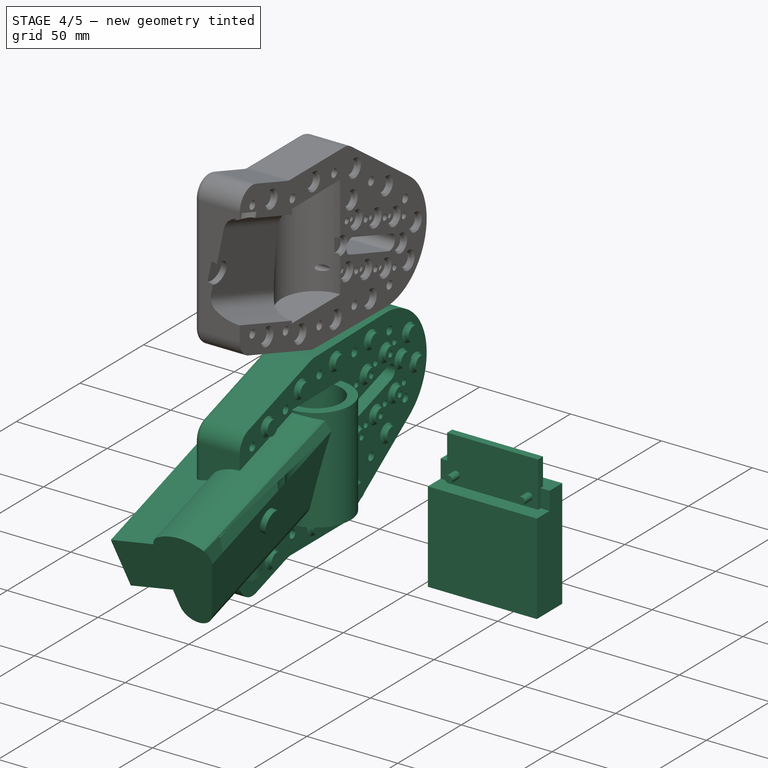
[diagram: stage 4 of 5 — iso view after this stage's code; geometry added in this stage tinted green]
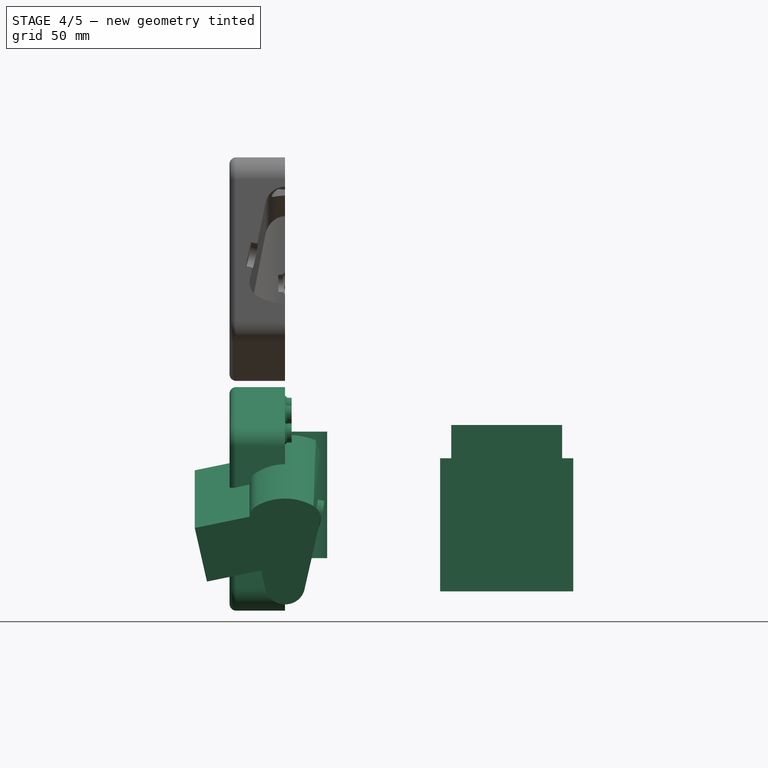
[diagram: stage 4 of 5 — front view after this stage's code; geometry added in this stage tinted green]
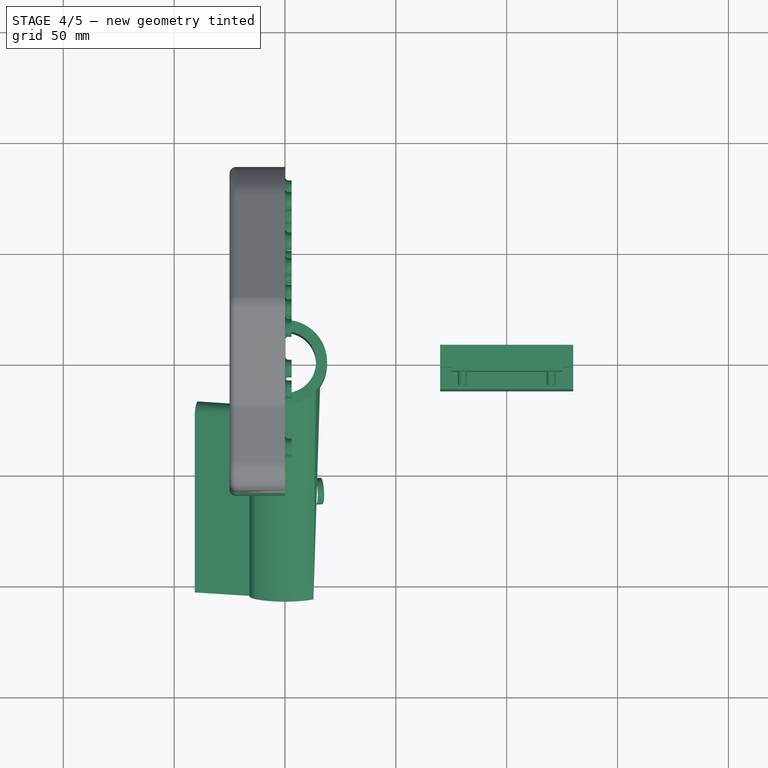
[diagram: stage 4 of 5 — top view after this stage's code; geometry added in this stage tinted green]
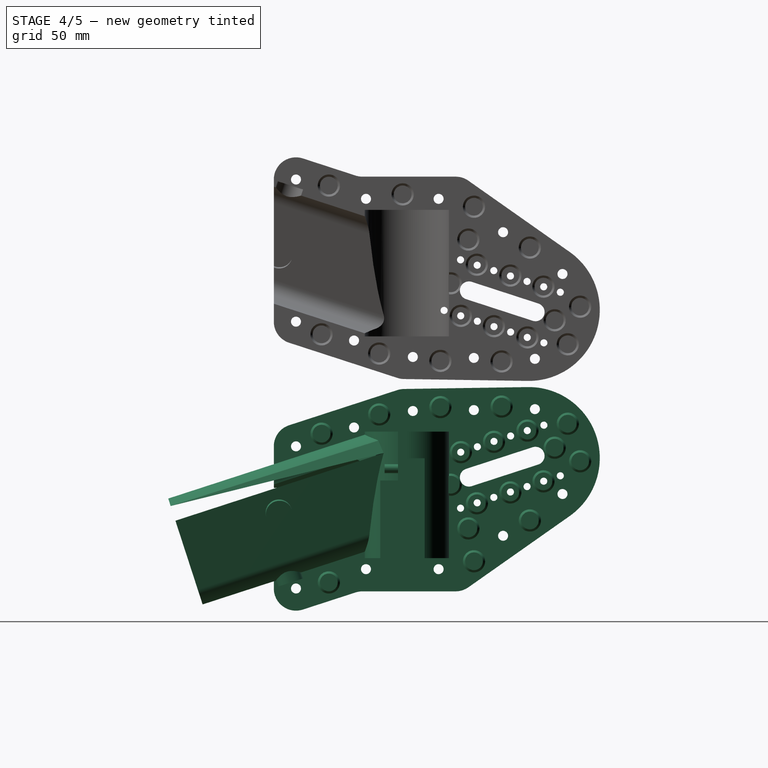
[diagram: stage 4 of 5 — right view after this stage's code; geometry added in this stage tinted green]
FEATURE [Part::Box] Box  label="Cube"
  AttacherType = Attacher::AttachEngine3D
  Height = 70
  Length = 50
  Placement = pos=(75,-4,-10) rot=(0,0,1;0rad)
  Width = 4
FEATURE [Sketcher::SketchObject] Sketch002  label="slicer"
  AttachmentOffset = pos=(0,0,70) rot=(0,0,1;0rad)
  FullyConstrained = true
  MapMode = 5
  Placement = pos=(70,-1.55e-14,1.55e-14) rot=(0.57735,0.57735,0.57735;2.0944rad)
  Support = -> [YZ_Plane003]
  sketch-geometry (6):
    g0: LineSegment StartX=-12 StartY=-15 StartZ=0 EndX=8 EndY=-15 EndZ=0
    g1: LineSegment StartX=8 StartY=-15 StartZ=0 EndX=8 EndY=45 EndZ=0
    g2: LineSegment StartX=8 StartY=45 StartZ=0 EndX=-2 EndY=45 EndZ=0
    g3: LineSegment StartX=-2 StartY=45 StartZ=0 EndX=-2 EndY=35 EndZ=0
    g4: LineSegment StartX=-2 StartY=35 StartZ=0 EndX=-12 EndY=35 EndZ=0
    g5: LineSegment StartX=-12 StartY=35 StartZ=0 EndX=-12 EndY=-15 EndZ=0
  constraints (18):
    c: Horizontal(g0)
    c: Coincident(g0,g1)
    c: Vertical(g1)
    c: Coincident(g1,g2)
    c: Horizontal(g2)
    c: Coincident(g2,g3)
    c: Vertical(g3)
    c: Coincident(g3,g4)
    c: Horizontal(g4)
    c: Coincident(g4,g5)
    c: Coincident(g5,g0)
    c: Vertical(g5)
    c: DistanceX(g3) = -2
    c: DistanceY(g3,g3) = 10
    c: DistanceY(g3) = 35
    c: Equal(g2,g4)
    c: DistanceX(g0,g0) = 20
    c: DistanceY(g5,g5) = 50
FEATURE [PartDesign::Pad] Pad002
  Direction = (1,-2e-16,3e-16)
  Length = 60
  Length2 = 10
  Placement = pos=(0,0,0) rot=(0.57735,0.57735,0.57735;2.0944rad)
  Profile = -> Sketch002
  ReferenceAxis = -> Sketch002 [N_Axis]
  Type = 0
FEATURE [Sketcher::SketchObject] Sketch003
  FullyConstrained = false
  MapMode = 5
  Placement = pos=(0,0,0) rot=(1,0,0;1.5708rad)
  Support = -> [XZ_Plane003]
  sketch-geometry (2):
    g0: Circle CenterX=80 CenterY=40.3348 CenterZ=0 NormalX=0 NormalY=0 NormalZ=1 AngleXU=0 Radius=2
    g1: Circle CenterX=120 CenterY=40.3348 CenterZ=0 NormalX=0 NormalY=0 NormalZ=1 AngleXU=0 Radius=2
  constraints (5):
    c: Horizontal(g0,g1)
    c: Equal(g0,g1)
    c: Diameter(g1) = 4
    c: DistanceX(g0) = 80
    c: DistanceX(g0,g1) = 40
FEATURE [PartDesign::Pad] Pad003
  BaseFeature = -> Pad002
  Direction = (0,-1,-2e-16)
  Length = 10
  Length2 = 10
  Placement = pos=(0,0,0) rot=(0.57735,0.57735,0.57735;2.0944rad)
  Profile = -> Sketch003
  ReferenceAxis = -> Sketch003 [N_Axis]
  Type = 0
FEATURE [PartDesign::FeatureBase] BaseFeature
  BaseFeature = -> Fusion
FEATURE [PartDesign::Pocket] Pocket001
  BaseFeature = -> BaseFeature
  Direction = (0,0,-1)
  Length = 5
  Length2 = 5
  Midplane = true
  Profile = -> Sketch006
  ReferenceAxis = -> Sketch006 [N_Axis]
  Type = 1
FEATURE [Part::FeaturePython] Slice001_child0  label="Slice001.0"  # WARN: FeaturePython — macro-defined, semantics opaque (R4)
  Base = -> Slice001
  FilterType = 1
  Invert = false
  OverrideMaxVal = 0
  WindowFrom = 80
  WindowTo = 100
  items = 0
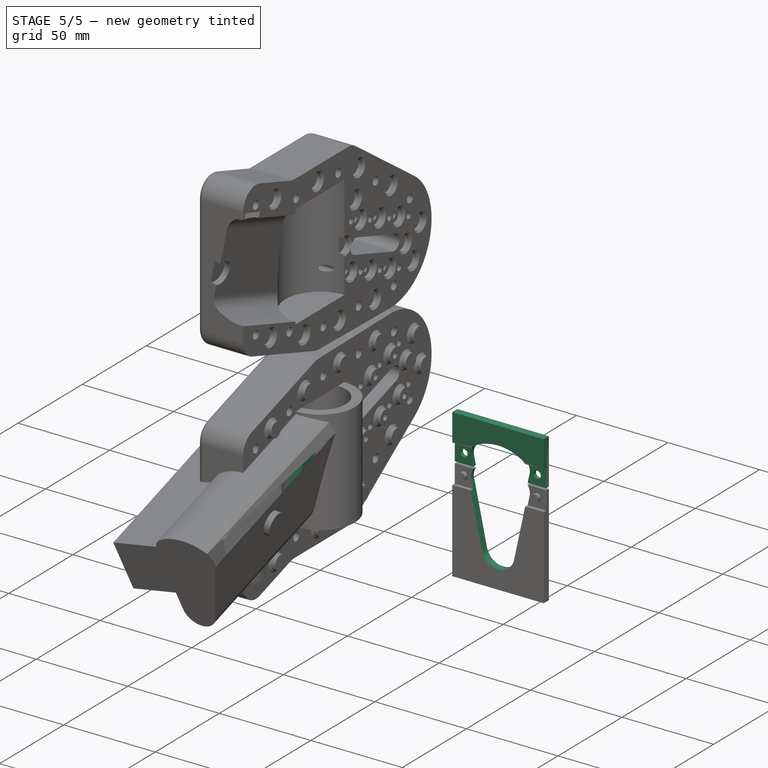
[diagram: stage 5 of 5 — iso view after this stage's code; geometry added in this stage tinted green]
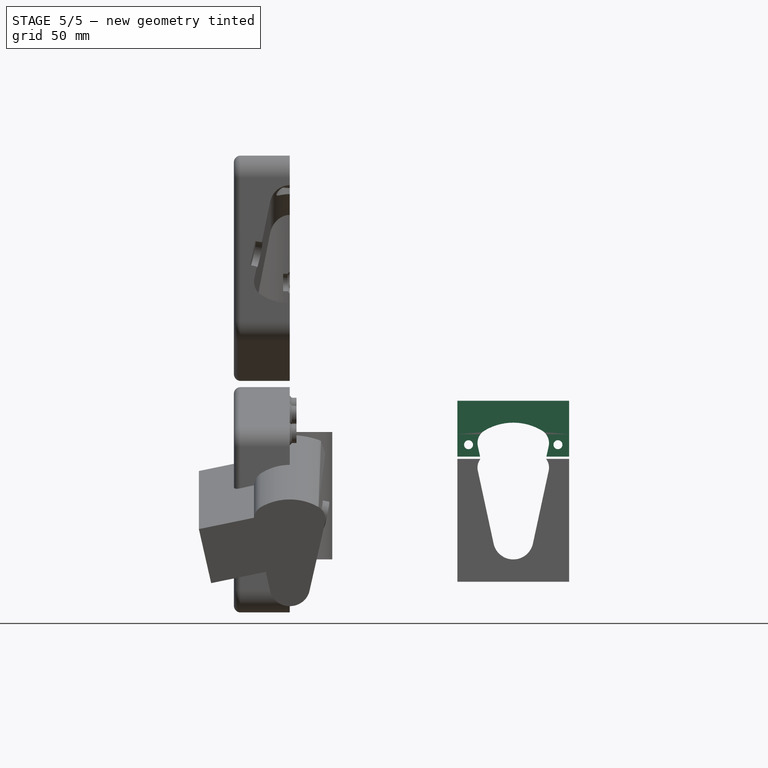
[diagram: stage 5 of 5 — front view after this stage's code; geometry added in this stage tinted green]
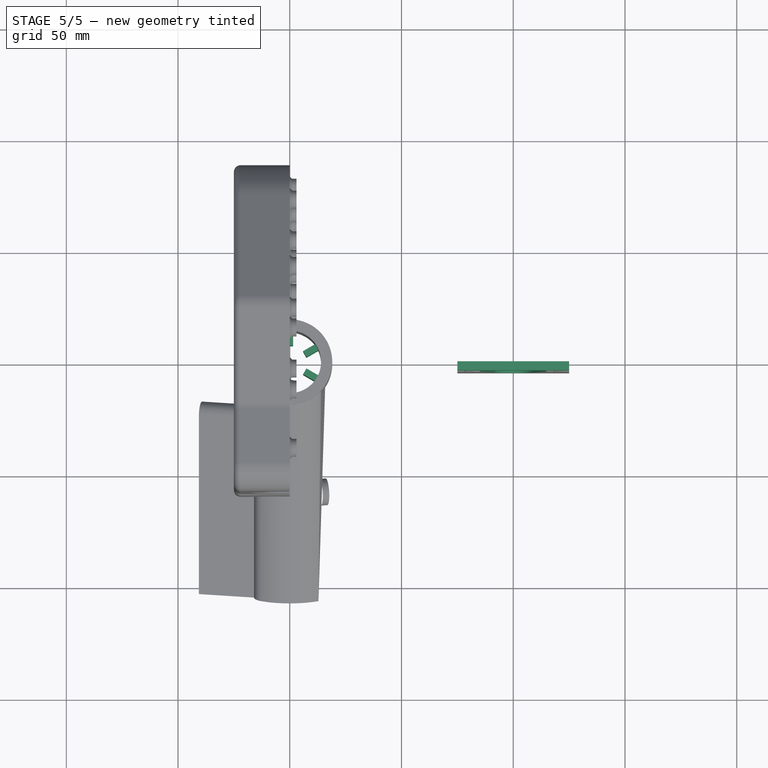
[diagram: stage 5 of 5 — top view after this stage's code; geometry added in this stage tinted green]
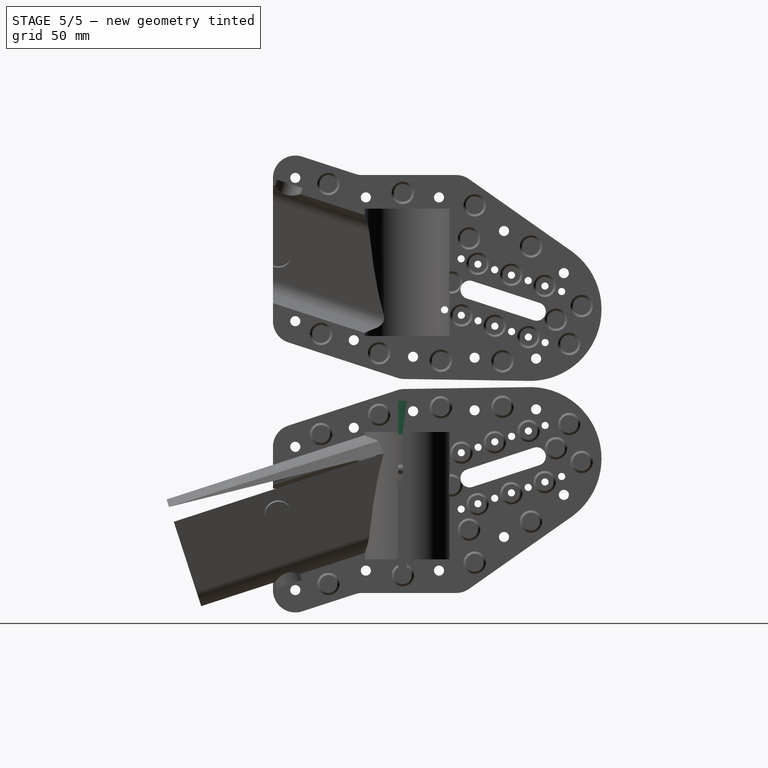
[diagram: stage 5 of 5 — right view after this stage's code; geometry added in this stage tinted green]
FEATURE [Part::Cut] Cut001
  Base = -> Box
  Tool = -> Body
FEATURE [PartDesign::Body] Body003  label="Slicer"
  Group = -> [Sketch002,Pad002,Sketch003,Pad003]
  Origin = -> Origin003
  Tip = -> Pad003
FEATURE [Part::FeaturePython] Slice  # WARN: FeaturePython — macro-defined, semantics opaque (R4)
  Base = -> Cut001
  Mode = 1
  Tolerance = 0
  Tools = -> [Body003]
FEATURE [Part::FeaturePython] Slice_child0  label="Slice.0"  # WARN: FeaturePython — macro-defined, semantics opaque (R4)
  Base = -> Slice
  FilterType = 1
  Invert = false
  OverrideMaxVal = 0
  WindowFrom = 80
  WindowTo = 100
  items = 0
FEATURE [Part::FeaturePython] Slice_child1  label="Slice.1"  # WARN: FeaturePython — macro-defined, semantics opaque (R4)
  Base = -> Slice
  FilterType = 1
  Invert = false
  OverrideMaxVal = 0
  Placement = pos=(200,-4,11) rot=(0,0,1;3.14159rad)
  WindowFrom = 80
  WindowTo = 100
  items = 1
FEATURE [PartDesign::Pad] Pad001
  BaseFeature = -> Pocket001
  Direction = (1,-2e-16,3e-16)
  Length = 3
  Length2 = 10
  Midplane = true
  Profile = -> Sketch001
  ReferenceAxis = -> Sketch001 [N_Axis]
  Type = 0
FEATURE [PartDesign::PolarPattern] PolarPattern
  Angle = 360
  Axis = -> Sketch001 [V_Axis]
  BaseFeature = -> Pad001
  Occurrences = 6
  Originals = -> [Pad001]
  Overlap = 0
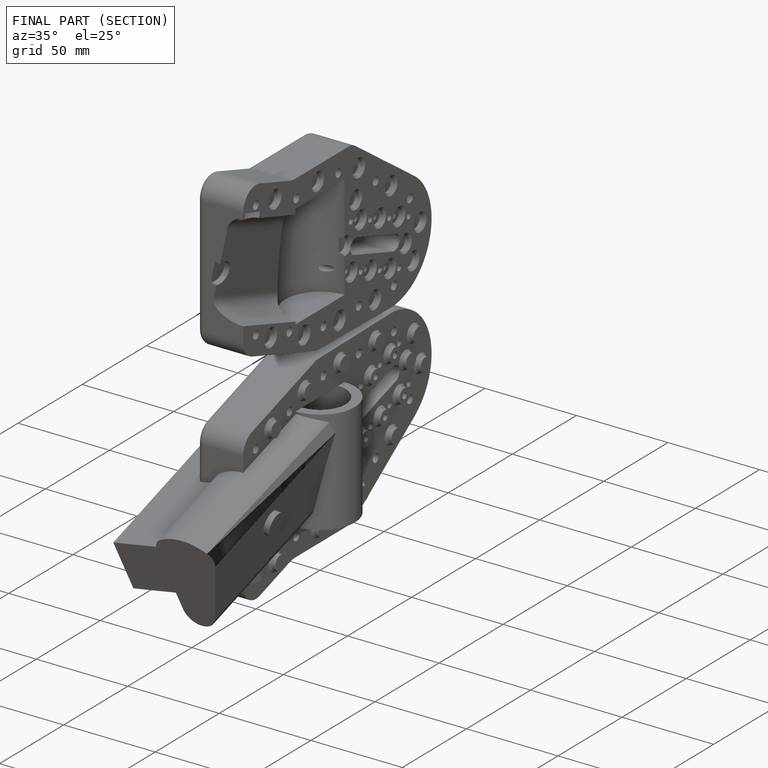
[diagram: finished part — half-section view (interior)]
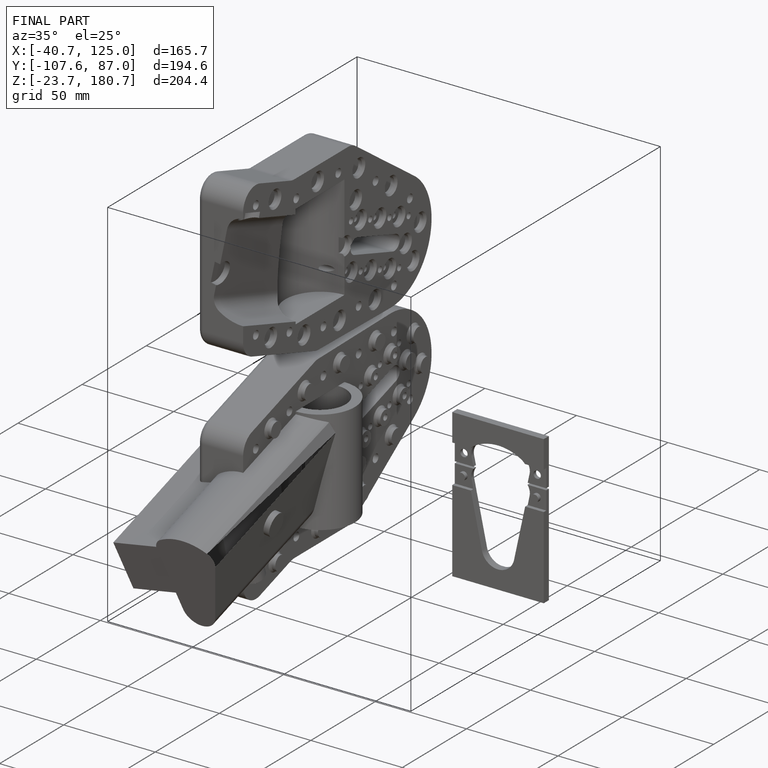
[diagram: finished part — iso view with bounding-box wireframe]
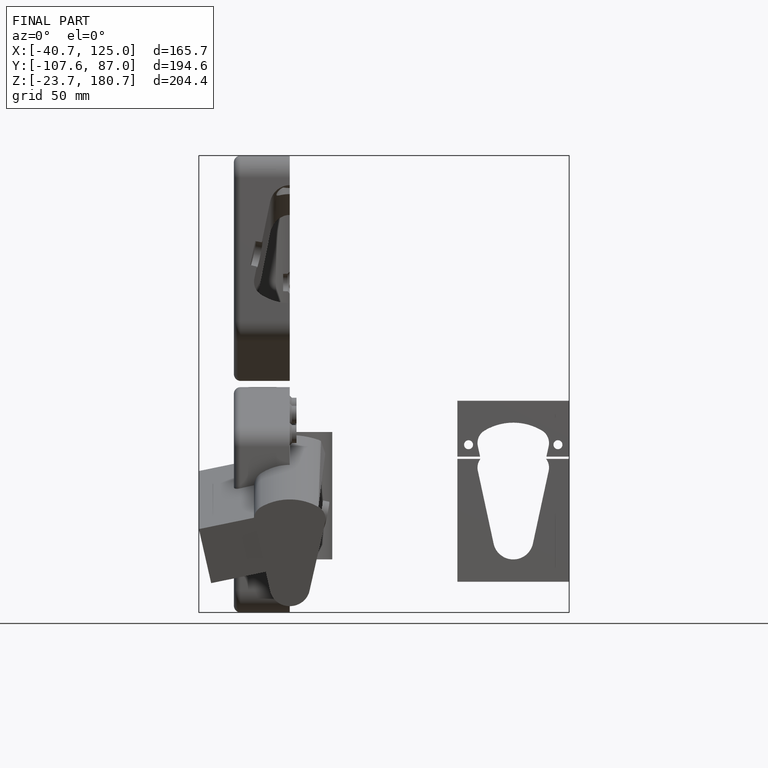
[diagram: finished part — front view with bounding-box wireframe]
